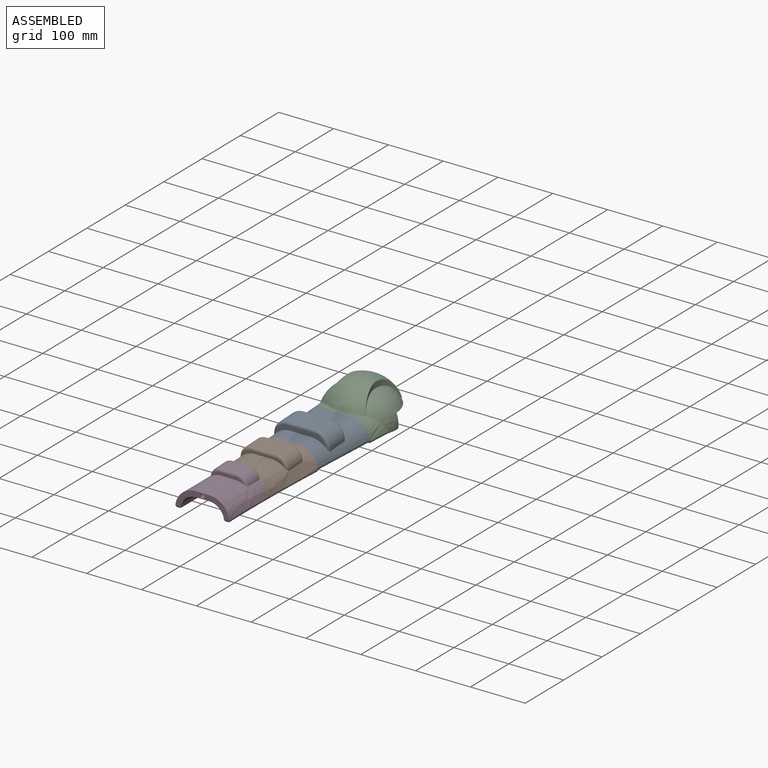
[diagram: assembled view]
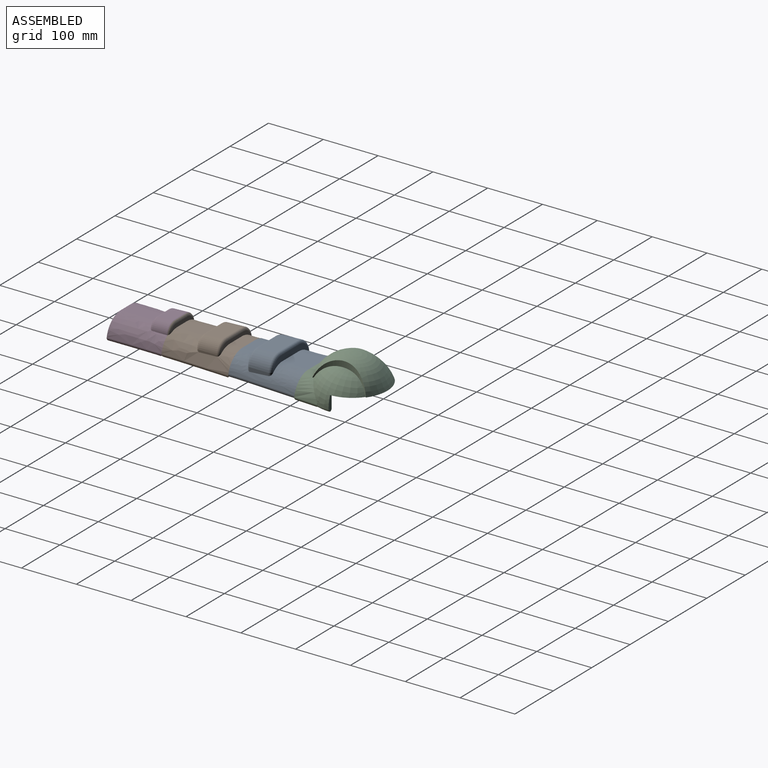
[diagram: assembled view, second angle]
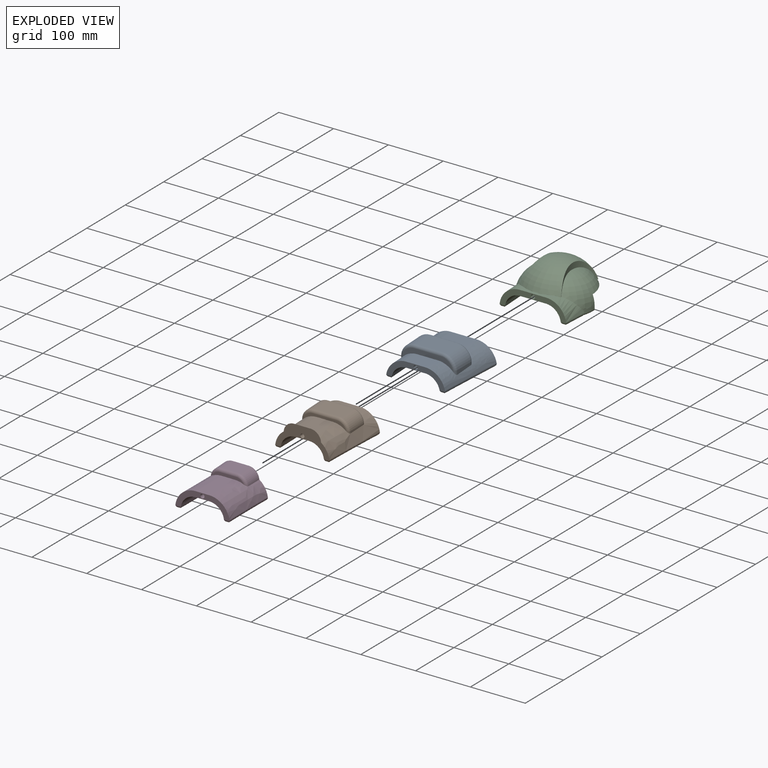
[diagram: exploded view]
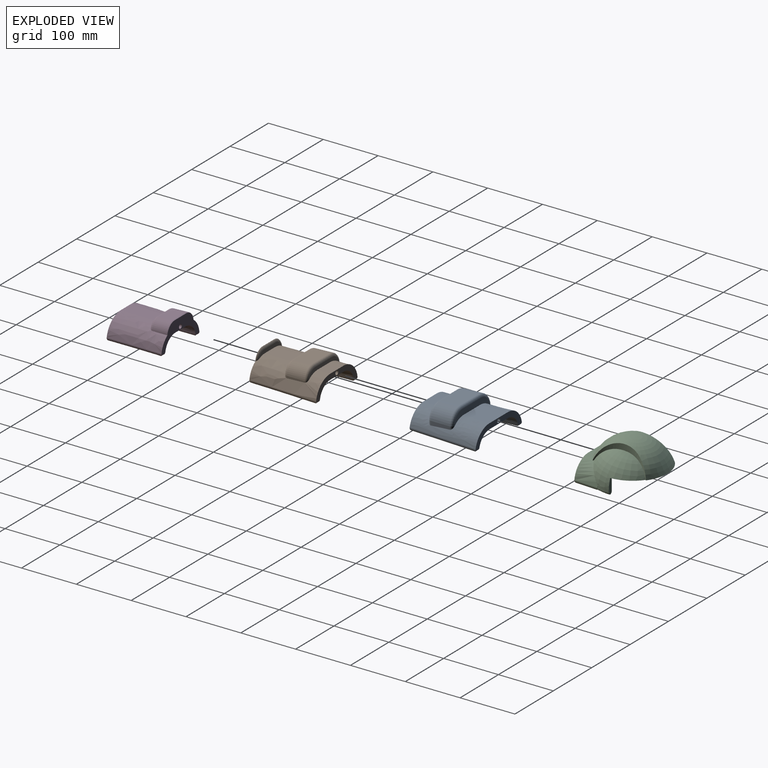
[diagram: exploded view, second angle]
ASSEMBLY  parts=4 mates=3
PART A: 39 faces, bbox 126.2x194.6x54.2 mm
  f0: plane 120.63x30.43mm, normal (0,1,0), area 1308mm2, adj f2,f3,f4,f5,f7,f8,f28,f31
  f1: plane 107.23x30.43mm, normal (0,-1,0), area 1173.9mm2, adj f2,f3,f4,f5,f6,f8,f28,f31
  f2: bspline ~190.83x37.13mm, area 4597.7mm2, adj f0,f1,f8,f32,f33,f34
  f3: bspline ~160.05x35.38mm, area 4597.7mm2, adj f0,f1,f8,f36,f37,f38
  f4: bspline ~191.29x47.12mm, area 4713.8mm2, adj f0,f1,f6,f7,f9,f10,f16,f24
  f5: bspline ~160.51x45.36mm, area 4688.5mm2, adj f0,f1,f6,f7,f9,f10,f15,f20
  f6: plane 37.58x30.98mm, normal (0,0,1), area 1115.3mm2, adj f1,f4,f5,f10
  f7: plane 48.74x47.85mm, normal (0,0,1), area 2198.2mm2, adj f0,f4,f5,f9
  f8: plane 125x47.85mm, normal (0,0,-1), area 5123.1mm2, adj f0,f1,f2,f3
  f9: plane 91.56x19.67mm, normal (0,1,0.04), area 885mm2, adj f4,f5,f7,f15,f16,f19
  f10: plane 91.11x17.87mm, normal (0,-1,-0.04), area 750.9mm2, adj f4,f5,f6,f13,f14,f18,f21,f24
  f11: cylinder r=26.56mm len=36.29mm, axis (0,1,0.04), area 1375.6mm2, adj f14,f15,f17,f23
  f12: cylinder r=26.56mm len=36.29mm, axis (0,-1,-0.04), area 1375.6mm2, adj f13,f16,f17,f26
  f13: torus R=21.56mm, axis (0,-1,-0.04), area 276.1mm2, adj f10,f12,f18,f27
  f14: torus R=21.56mm, axis (0,-1,-0.04), area 276.1mm2, adj f10,f11,f18,f22
  f15: torus R=21.56mm, axis (0,1,0.04), area 291.3mm2, adj f5,f9,f11,f19,f20
  f16: torus R=21.56mm, axis (0,1,0.04), area 291.2mm2, adj f4,f9,f12,f19,f25
  f17: plane 48.62x35.21mm, normal (0,-0.04,1), area 1713.7mm2, adj f11,f12,f18,f19
  f18: cylinder r=5mm len=48.62mm, axis (-1,0,0), area 381.9mm2, adj f10,f13,f14,f17
  f19: cylinder r=5mm len=48.62mm, axis (1,0,0), area 381.9mm2, adj f9,f15,f16,f17
  f20: extruded ~5.67x5mm, area 21.8mm2, adj f5,f15,f23
  f21: plane 1.98x1.94mm, normal (0,-1,0), area 1.9mm2, adj f5,f10,f22
  f22: extruded ~8.28x5.09mm, area 40.5mm2, adj f5,f14,f21,f23
  f23: extruded ~35.28x8.28mm, area 246mm2, adj f5,f11,f20,f22
  f24: plane 1.67x1.61mm, normal (0,-1,0), area 1.3mm2, adj f4,f10,f27
  f25: extruded ~5.25x4.98mm, area 19.3mm2, adj f4,f16,f26
  f26: extruded ~35.28x7.77mm, area 229.5mm2, adj f4,f12,f25,f27
  f27: extruded ~7.78x5.09mm, area 43mm2, adj f4,f13,f24,f26
  f28: cylinder r=3.75mm len=125mm, axis (0,-1,0), area 2945.2mm2, adj f0,f1
  f29: plane 115.8x7.03mm, normal (0,0,-1), area 94.8mm2, adj f35,f36,f37,f38
  f30: plane 115.8x7.03mm, normal (0,0,-1), area 94.8mm2, adj f31,f32,f33,f34
  f31: bspline ~185.64x15.68mm, area 998.4mm2, adj f0,f1,f4,f30,f32,f33
  f32: cylinder r=4.6mm len=10.15mm, axis (1,0,0), area 48.3mm2, adj f1,f2,f30,f31,f34
  f33: cylinder r=4.6mm len=10.16mm, axis (-1,0,0), area 48.3mm2, adj f0,f2,f30,f31,f34
  f34: bspline ~180.93x14.28mm, area 753.9mm2, adj f2,f30,f32,f33
  f35: bspline ~157.67x14.01mm, area 998.4mm2, adj f0,f1,f5,f29,f36,f37
  f36: cylinder r=4.6mm len=10.16mm, axis (-1,0,0), area 48.3mm2, adj f0,f3,f29,f35,f38
  f37: cylinder r=4.6mm len=10.15mm, axis (1,0,0), area 48.3mm2, adj f1,f3,f29,f35,f38
  f38: bspline ~153.72x12.63mm, area 753.9mm2, adj f3,f29,f36,f37
PART B: 41 faces, bbox 113.5x190.6x51.4 mm
  f0: bspline ~168.02x43.38mm, area 5176mm2, adj f5,f8,f9,f10,f11,f14,f17,f21
  f1: bspline ~170.88x43.52mm, area 5160.1mm2, adj f7,f8,f9,f10,f11,f15,f16,f21
  f2: bspline ~167.86x33.4mm, area 4811.7mm2, adj f4,f22,f23,f37,f39,f40
  f3: bspline ~170.72x33.53mm, area 4811.8mm2, adj f4,f22,f23,f33,f34,f36
  f4: plane 125.01x34.49mm, normal (0,0,-1), area 3666.8mm2, adj f2,f3,f22,f23
  f5: torus R=14.31mm, axis (0,-1,-0.04), area 141.2mm2, adj f0,f6,f21,f22
  f6: cylinder r=5mm len=29.54mm, axis (1,0,0), area 166mm2, adj f5,f7,f21,f22
  f7: torus R=14.31mm, axis (0,-1,-0.04), area 142.6mm2, adj f1,f6,f21,f22
  f8: plane 55.01x28.74mm, normal (0,0,1), area 1483.3mm2, adj f0,f1,f10,f21
  f9: plane 34.48x23.73mm, normal (0,0,1), area 791.8mm2, adj f0,f1,f11,f23
  f10: plane 77.47x13.89mm, normal (0,-1,-0.04), area 329.7mm2, adj f0,f1,f8,f16,f17,f20
  f11: plane 77.63x14.32mm, normal (0,1,0.04), area 444.6mm2, adj f0,f1,f9,f14,f15,f19
  f12: cylinder r=21.73mm len=33.75mm, axis (0,-1,-0.04), area 1051.4mm2, adj f14,f17,f18,f29
  f13: cylinder r=21.73mm len=33.75mm, axis (0,1,0.04), area 1051.4mm2, adj f15,f16,f18,f26
  f14: torus R=16.73mm, axis (0,-1,-0.04), area 231.9mm2, adj f0,f11,f12,f19,f28
  f15: torus R=16.73mm, axis (0,-1,-0.04), area 232.8mm2, adj f1,f11,f13,f19,f24
  f16: torus R=16.73mm, axis (0,1,0.04), area 220.8mm2, adj f1,f10,f13,f20,f25
  f17: torus R=16.73mm, axis (0,1,0.04), area 220.5mm2, adj f0,f10,f12,f20,f27
  f18: plane 43.95x32.87mm, normal (0,-0.04,1), area 1446mm2, adj f12,f13,f19,f20
  f19: cylinder r=5mm len=43.95mm, axis (1,0,0), area 345.2mm2, adj f11,f14,f15,f18
  f20: cylinder r=5mm len=43.95mm, axis (-1,0,0), area 345.2mm2, adj f10,f16,f17,f18
  f21: plane 57.5x10.77mm, normal (0,1,0.04), area 337.4mm2, adj f0,f1,f5,f6,f7,f8
  f22: plane 99.56x44.19mm, normal (0,-1,0), area 1800.4mm2, adj f0,f1,f2,f3,f4,f5,f6,f7
  f23: plane 109.36x33.86mm, normal (0,1,0), area 1214.7mm2, adj f0,f1,f2,f3,f4,f9,f30,f33
  f24: extruded ~4.48x3.02mm, area 8.4mm2, adj f1,f15,f26
  f25: extruded ~4.95x4.5mm, area 16.2mm2, adj f1,f16,f26
  f26: extruded ~32.93x4.5mm, area 123.7mm2, adj f1,f13,f24,f25
  f27: extruded ~4.9x4.1mm, area 14.1mm2, adj f0,f17,f29
  f28: extruded ~4.31x2.67mm, area 6.9mm2, adj f0,f14,f29
  f29: extruded ~32.93x4.1mm, area 111.4mm2, adj f0,f12,f27,f28
  f30: cylinder r=3.75mm len=125mm, axis (0,-1,0), area 2945.2mm2, adj f22,f23
  f31: plane 115.81x5.09mm, normal (0,0,-1), area 93.7mm2, adj f33,f34,f35,f36
  f32: plane 115.81x5.09mm, normal (0,0,-1), area 93.7mm2, adj f37,f38,f39,f40
  f33: cylinder r=4.6mm len=10.08mm, axis (-1,0,0), area 48.2mm2, adj f3,f23,f31,f34,f35
  f34: bspline ~165.92x10.19mm, area 789.4mm2, adj f3,f31,f33,f36
  f35: bspline ~141.61x10.41mm, area 961.7mm2, adj f1,f22,f23,f31,f33,f36
  f36: cylinder r=4.6mm len=10.07mm, axis (1,0,0), area 48.2mm2, adj f3,f22,f31,f34,f35
  f37: cylinder r=4.6mm len=10.08mm, axis (-1,0,0), area 48.2mm2, adj f2,f23,f32,f38,f39
  f38: bspline ~148.62x10.82mm, area 961.6mm2, adj f0,f22,f23,f32,f37,f40
  f39: bspline ~165.88x10.92mm, area 789.4mm2, adj f2,f32,f37,f40
  f40: cylinder r=4.6mm len=10.07mm, axis (1,0,0), area 48.2mm2, adj f2,f22,f32,f38,f39
PART C: 48 faces, bbox 134.8x174.9x75.8 mm
  f0: plane 5.89x1.78mm, normal (0,0,-1), area 1.2mm2, adj f44,f45,f47
  f1: cylinder r=65.24mm len=25.45mm, axis (0,-0.09,-1), area 112.6mm2, adj f5,f6,f15,f18,f47
  f2: cylinder r=65.24mm len=18.55mm, axis (0,-0.09,-1), area 67.3mm2, adj f4,f7,f14,f19,f40
  f3: cylinder r=57.49mm len=114.82mm, axis (0,0,1), area 1655.8mm2, adj f4,f5,f9,f10,f11,f12,f13,f22
  f4: plane 27.41x7.89mm, normal (0,1,0), area 182.4mm2, adj f2,f3,f14,f22,f39,f40
  f5: plane 27.41x7.89mm, normal (0,1,0), area 182.4mm2, adj f1,f3,f15,f22,f44,f47
  f6: bspline ~91.29x42.07mm, area 1483.6mm2, adj f1,f8,f15,f17,f18,f21,f29,f43
  f7: bspline ~126.79x44.07mm, area 1628.8mm2, adj f2,f8,f14,f16,f19,f21,f29,f36
  f8: plane 49.12x11.29mm, normal (0,0,1), area 353.4mm2, adj f6,f7,f21,f29
  f9: bspline ~90.73x32.08mm, area 1111.1mm2, adj f3,f11,f13,f29,f41,f42
  f10: bspline ~126.24x34.08mm, area 1232mm2, adj f3,f11,f12,f29,f34,f35
  f11: plane 49.9x18.31mm, normal (0,0,-1), area 684mm2, adj f3,f9,f10,f29
  f12: extruded ~10.3x6.87mm, area 42.1mm2, adj f3,f10,f37,f39
  f13: extruded ~13.53x12.54mm, area 102.8mm2, adj f3,f9,f44,f45
  f14: torus R=14.02mm, axis (0,-0.09,-1), area 4223.8mm2, adj f2,f4,f7,f16,f22
  f15: torus R=14.02mm, axis (0,-0.09,-1), area 4319.8mm2, adj f1,f5,f6,f17,f22
  f16: cylinder r=97.26mm len=100.48mm, axis (0,-0.09,-1), area 848.3mm2, adj f7,f14,f21,f22
  f17: cylinder r=97.26mm len=100.73mm, axis (0,-0.09,-1), area 849.4mm2, adj f6,f15,f21,f22
  f18: plane 3.69x0.63mm, normal (0.07,1,0), area 1.1mm2, adj f1,f6,f43,f46,f47
  f19: plane 2.71x0.41mm, normal (0.07,1,0), area 0.6mm2, adj f2,f7,f36,f38,f40
  f20: plane 3.91x3.89mm, normal (0,0.09,1), area 12mm2, adj f21
  f21: torus R=1.95mm, axis (0,-0.09,-1), area 9567.9mm2, adj f6,f7,f8,f16,f17,f20,f22
  f22: plane 125.32x117.8mm, normal (0,0,-1), area 2431.7mm2, adj f3,f4,f5,f14,f15,f16,f17,f21
  f23: plane 3.91x3.89mm, normal (0,-0.09,-1), area 12mm2, adj f26
  f24: torus R=14.02mm, axis (0,-0.09,-1), area 2994.2mm2, adj f22,f28
  f25: torus R=14.02mm, axis (0,-0.09,-1), area 2994.6mm2, adj f22,f27
  f26: torus R=1.95mm, axis (0,-0.09,-1), area 5265.9mm2, adj f22,f23,f27,f28
  f27: cylinder r=107.26mm len=94.83mm, axis (0,-0.09,-1), area 857.5mm2, adj f22,f25,f26
  f28: cylinder r=107.26mm len=94.83mm, axis (0,-0.09,-1), area 857.6mm2, adj f22,f24,f26
  f29: plane 122.83x33.93mm, normal (0,-1,0), area 1348.7mm2, adj f6,f7,f8,f9,f10,f11,f30,f34
  f30: cylinder r=3.75mm len=10mm, axis (0,-1,0), area 235.6mm2, adj f29,f31
  f31: plane 7.5x7.5mm, normal (0,-1,0), area 44.2mm2, adj f30
  f32: plane 45.32x3.28mm, normal (0,0,-1), area 37.1mm2, adj f34,f35,f36,f37,f38,f39,f40
  f33: plane 34.95x2.82mm, normal (0,0,-1), area 28.1mm2, adj f41,f42,f43,f45,f46
  f34: cylinder r=4.6mm len=10.08mm, axis (1,0,0), area 48.3mm2, adj f10,f29,f32,f35,f36
  f35: bspline ~84.39x9.37mm, area 258.7mm2, adj f10,f32,f34,f37
  f36: bspline ~86.56x10.25mm, area 389.2mm2, adj f7,f19,f29,f32,f34,f38
  f37: cylinder r=4.6mm len=7.18mm, axis (-0.07,-1,0), area 40.8mm2, adj f12,f32,f35,f39
  f38: cylinder r=4.6mm len=6.91mm, axis (-1,0.07,0), area 5mm2, adj f19,f32,f36,f40
  f39: torus R=62.09mm, axis (0,0,1), area 131.5mm2, adj f3,f4,f12,f32,f37,f40
  f40: bspline ~39.13x10.24mm, area 111mm2, adj f2,f4,f19,f32,f38,f39
  f41: cylinder r=4.6mm len=10.08mm, axis (1,0,0), area 48.3mm2, adj f9,f29,f33,f42,f43
  f42: bspline ~73.88x8.74mm, area 210mm2, adj f9,f33,f41,f45
  f43: bspline ~86.56x10.25mm, area 322.2mm2, adj f6,f18,f29,f33,f41,f46
  f44: torus R=62.09mm, axis (0,0,1), area 146.3mm2, adj f0,f3,f5,f13,f45,f47
  f45: cylinder r=4.6mm len=12.43mm, axis (-0.07,-1,0), area 75.7mm2, adj f0,f13,f33,f42,f44,f46,f47
  f46: cylinder r=4.6mm len=6.2mm, axis (-1,0.07,0), area 7.4mm2, adj f18,f33,f43,f45,f47
  f47: bspline ~46.69x14.06mm, area 173.4mm2, adj f0,f1,f5,f18,f44,f45,f46
PART D: 29 faces, bbox 101.6x136.2x50.8 mm
  f0: plane 66.77x25.24mm, normal (0,0,1), area 1646.9mm2, adj f1,f2,f6,f17
  f1: bspline ~128.47x37.91mm, area 4538.1mm2, adj f0,f6,f8,f10,f15,f16,f17,f22
  f2: bspline ~130.66x37.91mm, area 4524.6mm2, adj f0,f6,f9,f12,f13,f16,f17,f27
  f3: bspline ~128.47x27.92mm, area 3847.7mm2, adj f5,f16,f17,f21,f23,f24
  f4: bspline ~130.66x27.92mm, area 3847.8mm2, adj f5,f16,f17,f25,f26,f28
  f5: plane 100.03x25.38mm, normal (0,0,-1), area 2474.8mm2, adj f3,f4,f16,f17
  f6: plane 56.21x9.09mm, normal (0,-1,-0.04), area 250.9mm2, adj f0,f1,f2,f13,f14,f15
  f7: plane 29.54x26.51mm, normal (0,-0.04,1), area 783.8mm2, adj f8,f9,f11,f14
  f8: cylinder r=19.31mm len=27.3mm, axis (0,-1,-0.04), area 759mm2, adj f1,f7,f10,f15
  f9: cylinder r=19.31mm len=27.31mm, axis (0,1,0.04), area 765.4mm2, adj f2,f7,f12,f13
  f10: torus R=14.31mm, axis (0,-1,-0.04), area 52.7mm2, adj f1,f8,f11,f16
  f11: cylinder r=5mm len=29.54mm, axis (1,0,0), area 66mm2, adj f7,f10,f12,f16
  f12: torus R=14.31mm, axis (0,-1,-0.04), area 53mm2, adj f2,f9,f11,f16
  f13: torus R=14.31mm, axis (0,1,0.04), area 181.2mm2, adj f2,f6,f9,f14
  f14: cylinder r=5mm len=29.54mm, axis (-1,0,0), area 232mm2, adj f6,f7,f13,f15
  f15: torus R=14.31mm, axis (0,1,0.04), area 179.4mm2, adj f1,f6,f8,f14
  f16: plane 99.56x44.19mm, normal (0,1,0), area 1800.4mm2, adj f1,f2,f3,f4,f5,f10,f11,f12
  f17: plane 98.59x32.42mm, normal (0,-1,0), area 1121.2mm2, adj f0,f1,f2,f3,f4,f5,f18,f22
  f18: cylinder r=3.75mm len=100.02mm, axis (0,-1,0), area 2356.7mm2, adj f16,f17
  f19: plane 90.83x1.2mm, normal (0,0,-1), area 73.4mm2, adj f21,f22,f23,f24
  f20: plane 90.83x1.2mm, normal (0,0,-1), area 73.4mm2, adj f25,f26,f27,f28
  f21: cylinder r=4.6mm len=10.07mm, axis (-1,0,0), area 48.2mm2, adj f3,f16,f19,f22,f23
  f22: bspline ~129.6x6.1mm, area 764.2mm2, adj f1,f16,f17,f19,f21,f24
  f23: bspline ~126.58x5.31mm, area 625.2mm2, adj f3,f19,f21,f24
  f24: cylinder r=4.6mm len=10.07mm, axis (1,0,0), area 48.2mm2, adj f3,f17,f19,f22,f23
  f25: cylinder r=4.6mm len=10.07mm, axis (-1,0,0), area 48.2mm2, adj f4,f16,f20,f26,f27
  f26: bspline ~126.58x5.31mm, area 625.2mm2, adj f4,f20,f25,f28
  f27: bspline ~129.6x6.1mm, area 764.2mm2, adj f2,f16,f17,f20,f25,f28
  f28: cylinder r=4.6mm len=10.07mm, axis (1,0,0), area 48.2mm2, adj f4,f17,f20,f26,f27
PLACE A t=(217.1,7.8,113.66)mm
PLACE B t=(217.1,7.8,113.66)mm
PLACE C t=(217.1,7.8,113.66)mm
PLACE D t=(217.1,7.8,113.66)mm
MATE fastened B.f30 <-> A.f28  axis (0,1,0) through (-466.25,78.36,168.66)mm
MATE fastened D.f18 <-> B.f30  axis (0,1,0) through (-466.25,-46.64,168.66)mm
MATE fastened C.f30 <-> A.f28  axis (0,-1,0) through (-466.25,203.35,168.66)mm
